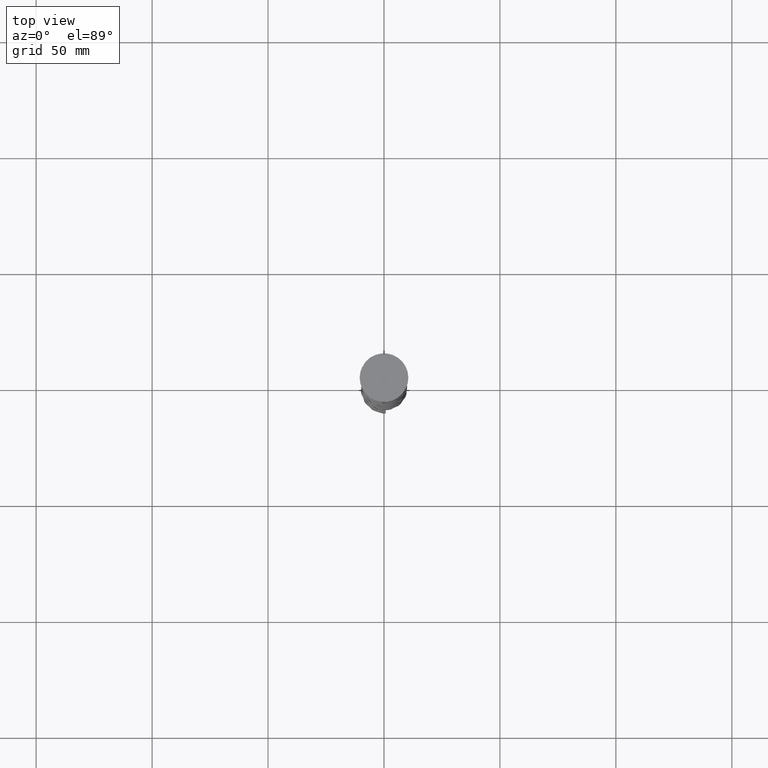
[diagram: clean part render]
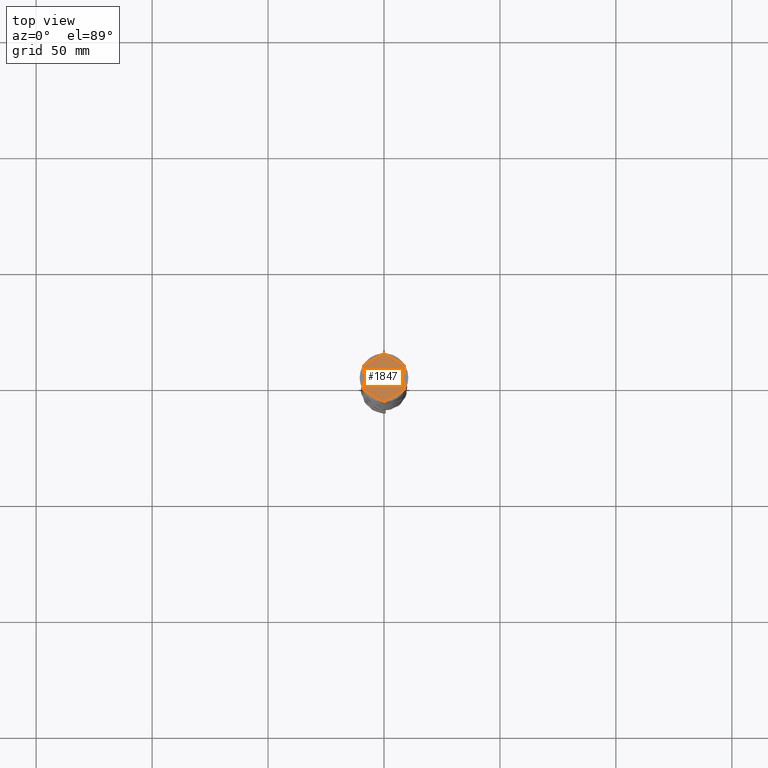
[diagram: same view with one face highlighted and labeled with its STEP entity id]
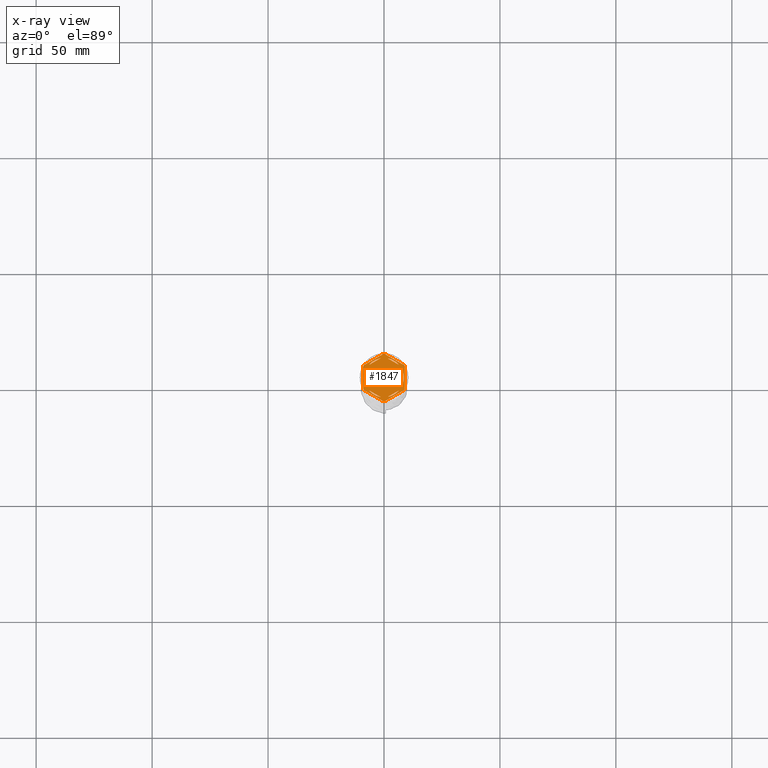
[diagram: x-ray of the same camera — body ghosted, the highlighted face saturated]
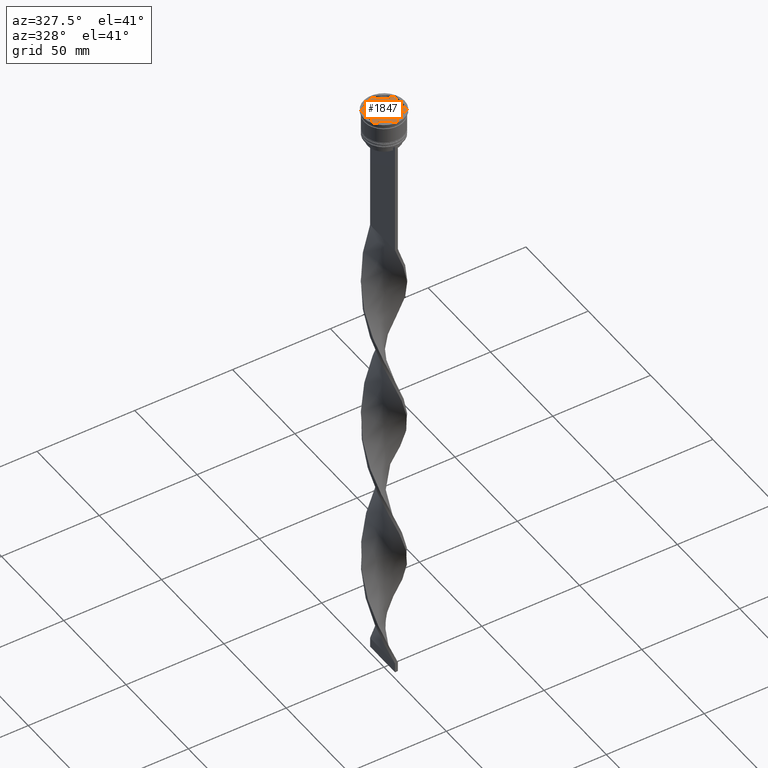
[diagram: same view with one face highlighted and labeled with its STEP entity id]
A machine part, top view. The second image highlights one B-rep face of the part: STEP entity #1847.
The next image is the same camera in x-ray: the body ghosted, the highlighted face saturated — about 0% of this face is hidden behind the body in this view.
A second angle (auxiliary view) of the same face is appended — the face is thin or edge-on in the first view.
In plain terms, the highlighted planar face has unit normal (0, 0, 1).
Its self-contained STEP definition (entity closure, byte-faithful):
#49 = CIRCLE ( 'NONE', #3727, 10.19999999999999574 ) ;
#51 = EDGE_LOOP ( 'NONE', ( #1798, #2936, #1013, #2996, #1372, #3045, #1042, #3164, #2404, #1758, #2555, #1175 ) ) ;
#57 = EDGE_CURVE ( 'NONE', #3614, #1819, #3667, .T. ) ;
#77 = VERTEX_POINT ( 'NONE', #2239 ) ;
#96 = VERTEX_POINT ( 'NONE', #2607 ) ;
#113 = VECTOR ( 'NONE', #790, 1000.000000000000114 ) ;
#114 = DIRECTION ( 'NONE',  ( 0.000000000000000000, 1.000000000000000000, 0.000000000000000000 ) ) ;
#143 = ORIENTED_EDGE ( 'NONE', *, *, #3620, .F. ) ;
#148 = DIRECTION ( 'NONE',  ( 1.000000000000000000, 0.000000000000000000, 0.000000000000000000 ) ) ;
#193 = AXIS2_PLACEMENT_3D ( 'NONE', #2483, #1852, #1834 ) ;
#215 = DIRECTION ( 'NONE',  ( 1.000000000000000000, 0.000000000000000000, 0.000000000000000000 ) ) ;
#234 = ORIENTED_EDGE ( 'NONE', *, *, #2742, .F. ) ;
#242 = CARTESIAN_POINT ( 'NONE',  ( 2.607697573705103160E-15, -10.39230484541326405, -1.000000000000000000 ) ) ;
#292 = CARTESIAN_POINT ( 'NONE',  ( 0.000000000000000000, 0.000000000000000000, -1.000000000000000000 ) ) ;
#343 = CARTESIAN_POINT ( 'NONE',  ( -1.512531407233448366, -8.364343891910017703, -1.000000000000000888 ) ) ;
#372 = EDGE_CURVE ( 'NONE', #1616, #815, #1698, .T. ) ;
#375 = VERTEX_POINT ( 'NONE', #1119 ) ;
#386 = AXIS2_PLACEMENT_3D ( 'NONE', #513, #2541, #879 ) ;
#402 = FACE_BOUND ( 'NONE', #4171, .T. ) ;
#419 = EDGE_LOOP ( 'NONE', ( #2169, #1257, #143 ) ) ;
#437 = CARTESIAN_POINT ( 'NONE',  ( 8.656921938165297092, 5.394228634059953897, -1.000000000000000000 ) ) ;
#475 = VECTOR ( 'NONE', #2707, 1000.000000000000000 ) ;
#484 = ORIENTED_EDGE ( 'NONE', *, *, #1529, .F. ) ;
#490 = CARTESIAN_POINT ( 'NONE',  ( 0.000000000000000000, 0.000000000000000000, -1.000000000000000000 ) ) ;
#496 = VERTEX_POINT ( 'NONE', #3465 ) ;
#497 = EDGE_CURVE ( 'NONE', #4075, #77, #2878, .T. ) ;
#513 = CARTESIAN_POINT ( 'NONE',  ( 0.000000000000000000, 0.000000000000000000, -1.000000000000000000 ) ) ;
#526 = DIRECTION ( 'NONE',  ( 0.000000000000000000, 0.000000000000000000, 1.000000000000000000 ) ) ;
#527 = CIRCLE ( 'NONE', #2947, 10.19999999999999574 ) ;
#541 = VECTOR ( 'NONE', #1242, 1000.000000000000000 ) ;
#581 = CARTESIAN_POINT ( 'NONE',  ( 9.000000000000001776, 4.799999999999988276, -1.000000000000000000 ) ) ;
#594 = VECTOR ( 'NONE', #114, 1000.000000000000000 ) ;
#596 = ORIENTED_EDGE ( 'NONE', *, *, #2345, .F. ) ;
#616 = DIRECTION ( 'NONE',  ( 1.000000000000000000, 0.000000000000000000, 0.000000000000000000 ) ) ;
#697 = EDGE_CURVE ( 'NONE', #2587, #1819, #527, .T. ) ;
#703 = DIRECTION ( 'NONE',  ( 1.000000000000000000, 0.000000000000000000, 0.000000000000000000 ) ) ;
#711 = CARTESIAN_POINT ( 'NONE',  ( -8.656921938165295316, -5.394228634059957450, -1.000000000000000000 ) ) ;
#721 = DIRECTION ( 'NONE',  ( 1.000000000000000000, 0.000000000000000000, 0.000000000000000000 ) ) ;
#776 = EDGE_CURVE ( 'NONE', #3614, #2634, #3229, .T. ) ;
#790 = DIRECTION ( 'NONE',  ( 0.8660254037844385966, -0.4999999999999999445, 0.000000000000000000 ) ) ;
#815 = VERTEX_POINT ( 'NONE', #3778 ) ;
#816 = VECTOR ( 'NONE', #2813, 1000.000000000000114 ) ;
#858 = CARTESIAN_POINT ( 'NONE',  ( -9.000000000000001776, -4.799999999999988276, -1.000000000000000000 ) ) ;
#877 = VECTOR ( 'NONE', #1943, 1000.000000000000114 ) ;
#879 = DIRECTION ( 'NONE',  ( 1.000000000000000000, 1.598721155460225418E-14, 0.000000000000000000 ) ) ;
#910 = ORIENTED_EDGE ( 'NONE', *, *, #3843, .F. ) ;
#911 = EDGE_CURVE ( 'NONE', #986, #1121, #1010, .T. ) ;
#956 = VECTOR ( 'NONE', #4077, 1000.000000000000227 ) ;
#960 = CIRCLE ( 'NONE', #3388, 8.500000000000000000 ) ;
#967 = ORIENTED_EDGE ( 'NONE', *, *, #497, .F. ) ;
#986 = VERTEX_POINT ( 'NONE', #4202 ) ;
#989 = CARTESIAN_POINT ( 'NONE',  ( -8.656921938165297092, 5.394228634059953009, -1.000000000000000000 ) ) ;
#1010 = CIRCLE ( 'NONE', #386, 10.19999999999999574 ) ;
#1013 = ORIENTED_EDGE ( 'NONE', *, *, #2606, .T. ) ;
#1027 = CIRCLE ( 'NONE', #2547, 8.500000000000000000 ) ;
#1034 = DIRECTION ( 'NONE',  ( -0.000000000000000000, -0.000000000000000000, -1.000000000000000000 ) ) ;
#1040 = DIRECTION ( 'NONE',  ( 0.000000000000000000, 0.000000000000000000, 1.000000000000000000 ) ) ;
#1042 = ORIENTED_EDGE ( 'NONE', *, *, #2460, .T. ) ;
#1089 = VERTEX_POINT ( 'NONE', #989 ) ;
#1101 = DIRECTION ( 'NONE',  ( 0.000000000000000000, 0.000000000000000000, 1.000000000000000000 ) ) ;
#1119 = CARTESIAN_POINT ( 'NONE',  ( -0.3430780618347024080, -10.19422863405994306, -1.000000000000000000 ) ) ;
#1121 = VERTEX_POINT ( 'NONE', #3959 ) ;
#1124 = DIRECTION ( 'NONE',  ( 0.8660254037844384856, 0.5000000000000003331, -0.000000000000000000 ) ) ;
#1132 = EDGE_CURVE ( 'NONE', #4119, #2470, #3291, .T. ) ;
#1161 = AXIS2_PLACEMENT_3D ( 'NONE', #2331, #1101, #1383 ) ;
#1162 = DIRECTION ( 'NONE',  ( 0.8660254037844387076, -0.4999999999999997224, 0.000000000000000000 ) ) ;
#1175 = ORIENTED_EDGE ( 'NONE', *, *, #776, .F. ) ;
#1184 = CARTESIAN_POINT ( 'NONE',  ( 8.000000000000000000, -2.872281323269017417, -1.000000000000000888 ) ) ;
#1201 = CARTESIAN_POINT ( 'NONE',  ( -9.000000000000001776, -5.196152422706632912, -1.000000000000000000 ) ) ;
#1242 = DIRECTION ( 'NONE',  ( 0.8660254037844385966, 0.5000000000000001110, 0.000000000000000000 ) ) ;
#1257 = ORIENTED_EDGE ( 'NONE', *, *, #1809, .F. ) ;
#1326 = DIRECTION ( 'NONE',  ( 1.000000000000000000, 0.000000000000000000, 0.000000000000000000 ) ) ;
#1350 = DIRECTION ( 'NONE',  ( 0.000000000000000000, 0.000000000000000000, 1.000000000000000000 ) ) ;
#1364 = VECTOR ( 'NONE', #4285, 1000.000000000000000 ) ;
#1372 = ORIENTED_EDGE ( 'NONE', *, *, #2797, .T. ) ;
#1383 = DIRECTION ( 'NONE',  ( 1.000000000000000000, 0.000000000000000000, -0.000000000000000000 ) ) ;
#1390 = LINE ( 'NONE', #2318, #475 ) ;
#1404 = LINE ( 'NONE', #2720, #3241 ) ;
#1444 = VECTOR ( 'NONE', #1531, 1000.000000000000000 ) ;
#1491 = CARTESIAN_POINT ( 'NONE',  ( 0.3430780618347059052, -10.19422863405994306, -1.000000000000000000 ) ) ;
#1516 = CIRCLE ( 'NONE', #2061, 8.500000000000000000 ) ;
#1529 = EDGE_CURVE ( 'NONE', #1693, #2896, #4173, .T. ) ;
#1531 = DIRECTION ( 'NONE',  ( -1.877893248421449036E-16, -1.000000000000000000, 0.000000000000000000 ) ) ;
#1545 = DIRECTION ( 'NONE',  ( -0.000000000000000000, -0.000000000000000000, -1.000000000000000000 ) ) ;
#1568 = CARTESIAN_POINT ( 'NONE',  ( -9.000000000000001776, 4.799999999999988276, -1.000000000000000000 ) ) ;
#1579 = CIRCLE ( 'NONE', #2058, 10.19999999999999574 ) ;
#1612 = CARTESIAN_POINT ( 'NONE',  ( 0.000000000000000000, 0.000000000000000000, -1.000000000000000000 ) ) ;
#1616 = VERTEX_POINT ( 'NONE', #3597 ) ;
#1642 = CARTESIAN_POINT ( 'NONE',  ( -8.000000000000000000, 4.618802153517004072, -1.000000000000000888 ) ) ;
#1677 = DIRECTION ( 'NONE',  ( 0.000000000000000000, 0.000000000000000000, 1.000000000000000000 ) ) ;
#1678 = CARTESIAN_POINT ( 'NONE',  ( 8.000000000000000000, 4.618802153517006737, -1.000000000000000888 ) ) ;
#1693 = VERTEX_POINT ( 'NONE', #343 ) ;
#1698 = LINE ( 'NONE', #1678, #113 ) ;
#1730 = FACE_OUTER_BOUND ( 'NONE', #51, .T. ) ;
#1758 = ORIENTED_EDGE ( 'NONE', *, *, #2003, .F. ) ;
#1798 = ORIENTED_EDGE ( 'NONE', *, *, #57, .T. ) ;
#1809 = EDGE_CURVE ( 'NONE', #2095, #96, #2965, .T. ) ;
#1819 = VERTEX_POINT ( 'NONE', #581 ) ;
#1834 = DIRECTION ( 'NONE',  ( 1.000000000000000000, 8.881784197001252323E-16, 0.000000000000000000 ) ) ;
#1847 = ADVANCED_FACE ( 'NONE', ( #2398, #402, #2007, #3047, #2768, #4066, #1730 ), #3352, .T. ) ;
#1852 = DIRECTION ( 'NONE',  ( -0.000000000000000000, -0.000000000000000000, -1.000000000000000000 ) ) ;
#1909 = CARTESIAN_POINT ( 'NONE',  ( 9.000000000000001776, -4.799999999999988276, -1.000000000000000000 ) ) ;
#1913 = DIRECTION ( 'NONE',  ( 0.000000000000000000, 0.000000000000000000, 1.000000000000000000 ) ) ;
#1943 = DIRECTION ( 'NONE',  ( -0.8660254037844387076, -0.4999999999999998335, 0.000000000000000000 ) ) ;
#2003 = EDGE_CURVE ( 'NONE', #2749, #375, #49, .T. ) ;
#2007 = FACE_BOUND ( 'NONE', #2860, .T. ) ;
#2021 = ORIENTED_EDGE ( 'NONE', *, *, #2134, .F. ) ;
#2058 = AXIS2_PLACEMENT_3D ( 'NONE', #292, #3588, #616 ) ;
#2061 = AXIS2_PLACEMENT_3D ( 'NONE', #2994, #1677, #2350 ) ;
#2095 = VERTEX_POINT ( 'NONE', #3765 ) ;
#2102 = EDGE_CURVE ( 'NONE', #3774, #2767, #4271, .T. ) ;
#2113 = LINE ( 'NONE', #1201, #3855 ) ;
#2116 = CARTESIAN_POINT ( 'NONE',  ( 0.000000000000000000, 0.000000000000000000, -1.000000000000000000 ) ) ;
#2134 = EDGE_CURVE ( 'NONE', #496, #2858, #3160, .T. ) ;
#2169 = ORIENTED_EDGE ( 'NONE', *, *, #3123, .F. ) ;
#2179 = EDGE_CURVE ( 'NONE', #3774, #375, #2113, .T. ) ;
#2193 = DIRECTION ( 'NONE',  ( 0.000000000000000000, 0.000000000000000000, 1.000000000000000000 ) ) ;
#2197 = CARTESIAN_POINT ( 'NONE',  ( -6.487468592766552078, -5.492062568641001619, -1.000000000000000888 ) ) ;
#2239 = CARTESIAN_POINT ( 'NONE',  ( -6.487468592766553854, 5.492062568640999842, -1.000000000000000888 ) ) ;
#2278 = CIRCLE ( 'NONE', #3466, 8.500000000000000000 ) ;
#2318 = CARTESIAN_POINT ( 'NONE',  ( -9.000000000000001776, 5.196152422706632024, -1.000000000000000000 ) ) ;
#2324 = AXIS2_PLACEMENT_3D ( 'NONE', #490, #526, #2787 ) ;
#2331 = CARTESIAN_POINT ( 'NONE',  ( 0.000000000000000000, 0.000000000000000000, -1.000000000000000000 ) ) ;
#2345 = EDGE_CURVE ( 'NONE', #2896, #1693, #2679, .T. ) ;
#2350 = DIRECTION ( 'NONE',  ( 1.000000000000000000, 0.000000000000000000, 0.000000000000000000 ) ) ;
#2398 = FACE_BOUND ( 'NONE', #3274, .T. ) ;
#2404 = ORIENTED_EDGE ( 'NONE', *, *, #2179, .T. ) ;
#2444 = CARTESIAN_POINT ( 'NONE',  ( 0.000000000000000000, 0.000000000000000000, -1.000000000000000000 ) ) ;
#2460 = EDGE_CURVE ( 'NONE', #3026, #2767, #1390, .T. ) ;
#2470 = VERTEX_POINT ( 'NONE', #4050 ) ;
#2483 = CARTESIAN_POINT ( 'NONE',  ( 0.000000000000000000, 0.000000000000000000, -1.000000000000000000 ) ) ;
#2507 = CARTESIAN_POINT ( 'NONE',  ( 0.000000000000000000, 0.000000000000000000, -1.000000000000000000 ) ) ;
#2541 = DIRECTION ( 'NONE',  ( -0.000000000000000000, -0.000000000000000000, -1.000000000000000000 ) ) ;
#2547 = AXIS2_PLACEMENT_3D ( 'NONE', #3016, #1350, #3042 ) ;
#2555 = ORIENTED_EDGE ( 'NONE', *, *, #3566, .T. ) ;
#2577 = LINE ( 'NONE', #242, #541 ) ;
#2587 = VERTEX_POINT ( 'NONE', #437 ) ;
#2606 = EDGE_CURVE ( 'NONE', #2587, #1121, #3223, .T. ) ;
#2607 = CARTESIAN_POINT ( 'NONE',  ( -8.000000000000000000, 2.872281323269016085, -1.000000000000000888 ) ) ;
#2610 = AXIS2_PLACEMENT_3D ( 'NONE', #1612, #1913, #3260 ) ;
#2634 = VERTEX_POINT ( 'NONE', #2900 ) ;
#2679 = CIRCLE ( 'NONE', #2610, 8.500000000000000000 ) ;
#2707 = DIRECTION ( 'NONE',  ( 0.000000000000000000, -1.000000000000000000, 0.000000000000000000 ) ) ;
#2720 = CARTESIAN_POINT ( 'NONE',  ( 8.673617379884035472E-16, 9.237604307034013473, -1.000000000000000888 ) ) ;
#2742 = EDGE_CURVE ( 'NONE', #77, #4075, #1404, .T. ) ;
#2749 = VERTEX_POINT ( 'NONE', #1491 ) ;
#2751 = AXIS2_PLACEMENT_3D ( 'NONE', #2507, #1545, #215 ) ;
#2767 = VERTEX_POINT ( 'NONE', #858 ) ;
#2768 = FACE_BOUND ( 'NONE', #419, .T. ) ;
#2787 = DIRECTION ( 'NONE',  ( 1.000000000000000000, 0.000000000000000000, 0.000000000000000000 ) ) ;
#2797 = EDGE_CURVE ( 'NONE', #986, #1089, #3788, .T. ) ;
#2813 = DIRECTION ( 'NONE',  ( -0.8660254037844385966, 0.4999999999999999445, 0.000000000000000000 ) ) ;
#2833 = AXIS2_PLACEMENT_3D ( 'NONE', #2444, #3742, #148 ) ;
#2852 = EDGE_LOOP ( 'NONE', ( #967, #234 ) ) ;
#2858 = VERTEX_POINT ( 'NONE', #1184 ) ;
#2860 = EDGE_LOOP ( 'NONE', ( #2979, #3378 ) ) ;
#2874 = CARTESIAN_POINT ( 'NONE',  ( -8.000000000000000000, -4.618802153517006737, -1.000000000000000888 ) ) ;
#2878 = CIRCLE ( 'NONE', #2324, 8.500000000000000000 ) ;
#2886 = CARTESIAN_POINT ( 'NONE',  ( 0.000000000000000000, 0.000000000000000000, -1.000000000000000000 ) ) ;
#2896 = VERTEX_POINT ( 'NONE', #2197 ) ;
#2900 = CARTESIAN_POINT ( 'NONE',  ( 8.656921938165297092, -5.394228634059953009, -1.000000000000000000 ) ) ;
#2905 = ORIENTED_EDGE ( 'NONE', *, *, #372, .F. ) ;
#2936 = ORIENTED_EDGE ( 'NONE', *, *, #697, .F. ) ;
#2947 = AXIS2_PLACEMENT_3D ( 'NONE', #2116, #1034, #703 ) ;
#2959 = VERTEX_POINT ( 'NONE', #3907 ) ;
#2965 = LINE ( 'NONE', #1642, #1364 ) ;
#2979 = ORIENTED_EDGE ( 'NONE', *, *, #3384, .F. ) ;
#2994 = CARTESIAN_POINT ( 'NONE',  ( 0.000000000000000000, 0.000000000000000000, -1.000000000000000000 ) ) ;
#2996 = ORIENTED_EDGE ( 'NONE', *, *, #911, .F. ) ;
#3009 = CARTESIAN_POINT ( 'NONE',  ( 0.000000000000000000, 0.000000000000000000, -1.000000000000000000 ) ) ;
#3016 = CARTESIAN_POINT ( 'NONE',  ( 0.000000000000000000, 0.000000000000000000, -1.000000000000000000 ) ) ;
#3022 = DIRECTION ( 'NONE',  ( -0.000000000000000000, -0.000000000000000000, -1.000000000000000000 ) ) ;
#3026 = VERTEX_POINT ( 'NONE', #1568 ) ;
#3035 = EDGE_CURVE ( 'NONE', #3026, #1089, #1579, .T. ) ;
#3042 = DIRECTION ( 'NONE',  ( 1.000000000000000000, 0.000000000000000000, 0.000000000000000000 ) ) ;
#3045 = ORIENTED_EDGE ( 'NONE', *, *, #3035, .F. ) ;
#3047 = FACE_BOUND ( 'NONE', #3555, .T. ) ;
#3080 = CARTESIAN_POINT ( 'NONE',  ( 9.000000000000001776, -5.196152422706632024, -1.000000000000000000 ) ) ;
#3117 = CARTESIAN_POINT ( 'NONE',  ( 7.999999999999998224, -4.618802153517008513, -1.000000000000000888 ) ) ;
#3123 = EDGE_CURVE ( 'NONE', #96, #2959, #1516, .T. ) ;
#3141 = CARTESIAN_POINT ( 'NONE',  ( 0.000000000000000000, 10.39230484541326582, -1.000000000000000000 ) ) ;
#3148 = CARTESIAN_POINT ( 'NONE',  ( 9.000000000000001776, 5.196152422706632912, -1.000000000000000000 ) ) ;
#3160 = LINE ( 'NONE', #3117, #1444 ) ;
#3164 = ORIENTED_EDGE ( 'NONE', *, *, #2102, .F. ) ;
#3174 = EDGE_CURVE ( 'NONE', #815, #1616, #1027, .T. ) ;
#3176 = VECTOR ( 'NONE', #4154, 1000.000000000000000 ) ;
#3223 = LINE ( 'NONE', #3148, #956 ) ;
#3229 = CIRCLE ( 'NONE', #193, 10.19999999999999574 ) ;
#3241 = VECTOR ( 'NONE', #1124, 1000.000000000000114 ) ;
#3260 = DIRECTION ( 'NONE',  ( 1.000000000000000000, 0.000000000000000000, 0.000000000000000000 ) ) ;
#3274 = EDGE_LOOP ( 'NONE', ( #3310, #2905 ) ) ;
#3291 = LINE ( 'NONE', #3595, #877 ) ;
#3310 = ORIENTED_EDGE ( 'NONE', *, *, #3174, .F. ) ;
#3352 = PLANE ( 'NONE',  #1161 ) ;
#3378 = ORIENTED_EDGE ( 'NONE', *, *, #1132, .F. ) ;
#3384 = EDGE_CURVE ( 'NONE', #2470, #4119, #4207, .T. ) ;
#3388 = AXIS2_PLACEMENT_3D ( 'NONE', #2886, #2193, #3860 ) ;
#3465 = CARTESIAN_POINT ( 'NONE',  ( 8.000000000000000000, 2.872281323269014752, -1.000000000000000888 ) ) ;
#3466 = AXIS2_PLACEMENT_3D ( 'NONE', #3009, #1040, #1326 ) ;
#3555 = EDGE_LOOP ( 'NONE', ( #596, #484 ) ) ;
#3566 = EDGE_CURVE ( 'NONE', #2749, #2634, #2577, .T. ) ;
#3588 = DIRECTION ( 'NONE',  ( -0.000000000000000000, -0.000000000000000000, -1.000000000000000000 ) ) ;
#3595 = CARTESIAN_POINT ( 'NONE',  ( -8.673617379884035472E-16, -9.237604307034013473, -1.000000000000000888 ) ) ;
#3597 = CARTESIAN_POINT ( 'NONE',  ( 1.512531407233448366, 8.364343891910017703, -1.000000000000000888 ) ) ;
#3614 = VERTEX_POINT ( 'NONE', #1909 ) ;
#3620 = EDGE_CURVE ( 'NONE', #2959, #2095, #960, .T. ) ;
#3667 = LINE ( 'NONE', #3080, #594 ) ;
#3727 = AXIS2_PLACEMENT_3D ( 'NONE', #3998, #3022, #721 ) ;
#3742 = DIRECTION ( 'NONE',  ( 0.000000000000000000, 0.000000000000000000, 1.000000000000000000 ) ) ;
#3765 = CARTESIAN_POINT ( 'NONE',  ( -8.000000000000000000, -2.872281323269016085, -1.000000000000000888 ) ) ;
#3774 = VERTEX_POINT ( 'NONE', #711 ) ;
#3778 = CARTESIAN_POINT ( 'NONE',  ( 6.487468592766552078, 5.492062568641001619, -1.000000000000000888 ) ) ;
#3788 = LINE ( 'NONE', #3141, #3176 ) ;
#3843 = EDGE_CURVE ( 'NONE', #2858, #496, #2278, .T. ) ;
#3855 = VECTOR ( 'NONE', #1162, 1000.000000000000114 ) ;
#3860 = DIRECTION ( 'NONE',  ( 1.000000000000000000, 0.000000000000000000, 0.000000000000000000 ) ) ;
#3907 = CARTESIAN_POINT ( 'NONE',  ( -8.500000000000000000, 0.000000000000000000, -1.000000000000000000 ) ) ;
#3945 = CARTESIAN_POINT ( 'NONE',  ( 6.487468592766547637, -5.492062568641006060, -1.000000000000000888 ) ) ;
#3959 = CARTESIAN_POINT ( 'NONE',  ( 0.3430780618347050170, 10.19422863405994306, -1.000000000000000000 ) ) ;
#3998 = CARTESIAN_POINT ( 'NONE',  ( 0.000000000000000000, 0.000000000000000000, -1.000000000000000000 ) ) ;
#4006 = CARTESIAN_POINT ( 'NONE',  ( -1.512531407233451475, 8.364343891910017703, -1.000000000000000888 ) ) ;
#4050 = CARTESIAN_POINT ( 'NONE',  ( 1.512531407233452363, -8.364343891910017703, -1.000000000000000888 ) ) ;
#4066 = FACE_BOUND ( 'NONE', #2852, .T. ) ;
#4075 = VERTEX_POINT ( 'NONE', #4006 ) ;
#4077 = DIRECTION ( 'NONE',  ( -0.8660254037844385966, 0.5000000000000000000, 0.000000000000000000 ) ) ;
#4119 = VERTEX_POINT ( 'NONE', #3945 ) ;
#4154 = DIRECTION ( 'NONE',  ( -0.8660254037844385966, -0.5000000000000001110, 0.000000000000000000 ) ) ;
#4171 = EDGE_LOOP ( 'NONE', ( #910, #2021 ) ) ;
#4173 = LINE ( 'NONE', #2874, #816 ) ;
#4202 = CARTESIAN_POINT ( 'NONE',  ( -0.3430780618347059052, 10.19422863405994306, -1.000000000000000000 ) ) ;
#4207 = CIRCLE ( 'NONE', #2833, 8.500000000000000000 ) ;
#4271 = CIRCLE ( 'NONE', #2751, 10.19999999999999574 ) ;
#4285 = DIRECTION ( 'NONE',  ( 0.000000000000000000, 1.000000000000000000, 0.000000000000000000 ) ) ;